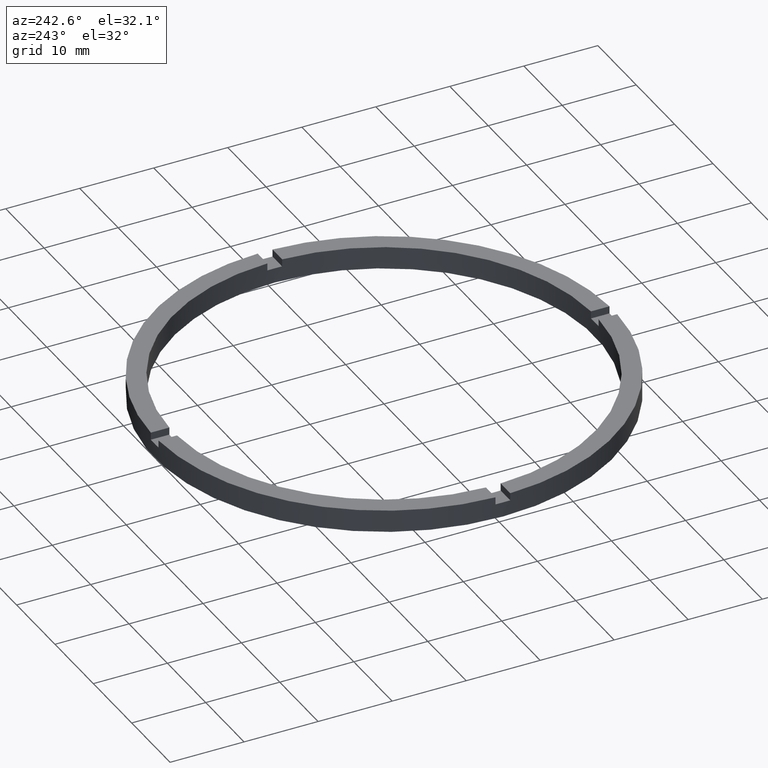
[diagram: clean part render]
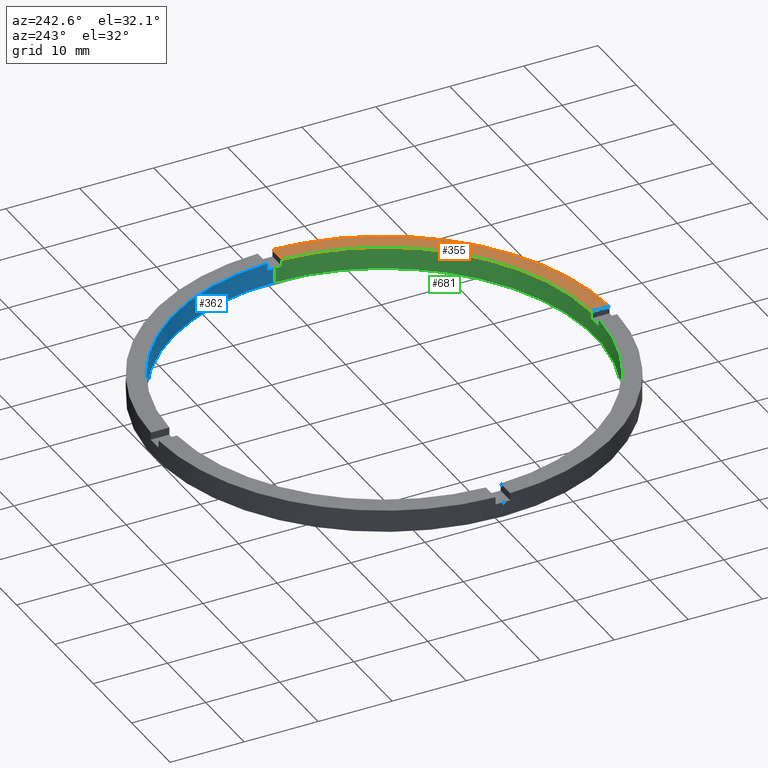
[diagram: same view with three faces highlighted in distinct colors, each labeled with its STEP entity id]
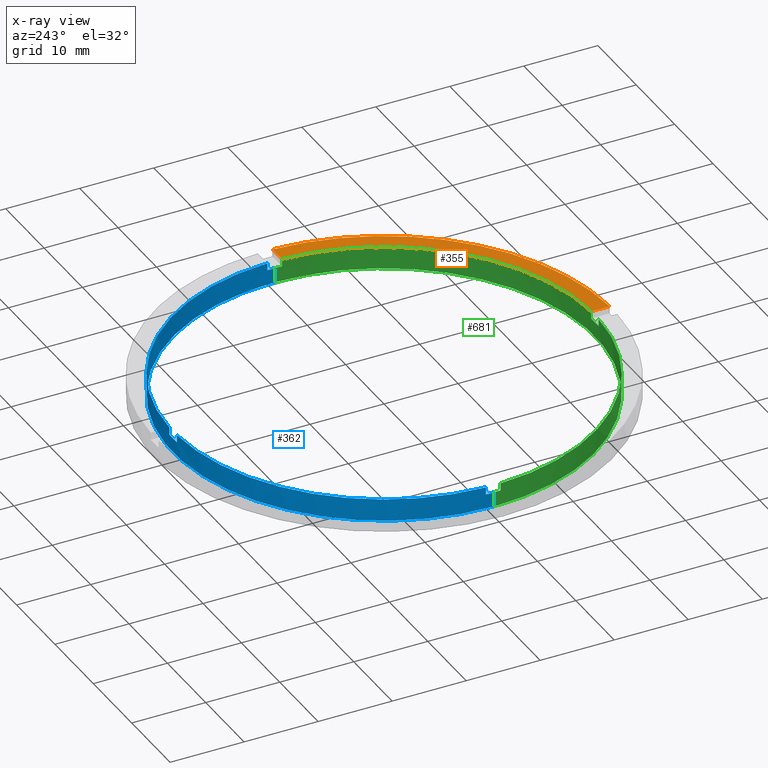
[diagram: x-ray of the same camera — body ghosted, the three highlighted faces saturated]
A machine part, auxiliary view with three faces highlighted in distinct colors.
The next image is the same camera in x-ray (body ghosted, the three faces saturated) — at least one of them is partly hidden behind the body in this view.
Their STEP definitions:

[orange] entity #355 — the highlighted planar face has unit normal (0, 0, 1).
#2 = CIRCLE ( 'NONE', #505, 28.50000000000000000 ) ;
#33 = VERTEX_POINT ( 'NONE', #120 ) ;
#50 = VERTEX_POINT ( 'NONE', #532 ) ;
#62 = PLANE ( 'NONE',  #327 ) ;
#68 = VERTEX_POINT ( 'NONE', #89 ) ;
#78 = EDGE_CURVE ( 'NONE', #50, #68, #540, .T. ) ;
#89 = CARTESIAN_POINT ( 'NONE',  ( 30.98386676965932907, -1.000000000000158762, 3.000000000000000000 ) ) ;
#93 = CARTESIAN_POINT ( 'NONE',  ( 0.000000000000000000, 0.000000000000000000, 3.000000000000000000 ) ) ;
#120 = CARTESIAN_POINT ( 'NONE',  ( 28.48245073725222554, -1.000000000000158762, 3.000000000000000000 ) ) ;
#124 = DIRECTION ( 'NONE',  ( 1.000000000000000000, 6.505213034913025371E-17, 0.000000000000000000 ) ) ;
#140 = DIRECTION ( 'NONE',  ( 0.000000000000000000, 0.000000000000000000, 1.000000000000000000 ) ) ;
#177 = VECTOR ( 'NONE', #124, 1000.000000000000000 ) ;
#182 = CARTESIAN_POINT ( 'NONE',  ( 0.000000000000000000, 0.000000000000000000, 3.000000000000000000 ) ) ;
#188 = DIRECTION ( 'NONE',  ( 0.000000000000000000, 0.000000000000000000, 1.000000000000000000 ) ) ;
#196 = EDGE_CURVE ( 'NONE', #398, #33, #2, .T. ) ;
#199 = ORIENTED_EDGE ( 'NONE', *, *, #78, .T. ) ;
#203 = ORIENTED_EDGE ( 'NONE', *, *, #626, .F. ) ;
#233 = DIRECTION ( 'NONE',  ( 1.000000000000000000, 0.000000000000000000, 0.000000000000000000 ) ) ;
#234 = CARTESIAN_POINT ( 'NONE',  ( 20.99999999999999289, -1.000000000000159428, 3.000000000000000000 ) ) ;
#250 = CARTESIAN_POINT ( 'NONE',  ( 0.9999999999998382405, -28.48245073725223264, 3.000000000000000000 ) ) ;
#255 = EDGE_CURVE ( 'NONE', #50, #398, #509, .T. ) ;
#302 = EDGE_LOOP ( 'NONE', ( #203, #467, #594, #199 ) ) ;
#327 = AXIS2_PLACEMENT_3D ( 'NONE', #182, #188, #652 ) ;
#355 = ADVANCED_FACE ( 'NONE', ( #632 ), #62, .T. ) ;
#374 = CARTESIAN_POINT ( 'NONE',  ( 0.9999999999998373523, -21.00000000000017764, 3.000000000000000000 ) ) ;
#375 = DIRECTION ( 'NONE',  ( 1.000000000000000000, 0.000000000000000000, 0.000000000000000000 ) ) ;
#398 = VERTEX_POINT ( 'NONE', #250 ) ;
#429 = DIRECTION ( 'NONE',  ( 0.000000000000000000, 0.000000000000000000, 1.000000000000000000 ) ) ;
#430 = LINE ( 'NONE', #234, #177 ) ;
#437 = CARTESIAN_POINT ( 'NONE',  ( 0.000000000000000000, 0.000000000000000000, 3.000000000000000000 ) ) ;
#467 = ORIENTED_EDGE ( 'NONE', *, *, #196, .F. ) ;
#497 = VECTOR ( 'NONE', #576, 1000.000000000000000 ) ;
#505 = AXIS2_PLACEMENT_3D ( 'NONE', #437, #429, #375 ) ;
#509 = LINE ( 'NONE', #374, #497 ) ;
#532 = CARTESIAN_POINT ( 'NONE',  ( 0.9999999999998386846, -30.98386676965933972, 3.000000000000000000 ) ) ;
#540 = CIRCLE ( 'NONE', #628, 31.00000000000000000 ) ;
#576 = DIRECTION ( 'NONE',  ( -1.301042606982605074E-16, 1.000000000000000000, -0.000000000000000000 ) ) ;
#594 = ORIENTED_EDGE ( 'NONE', *, *, #255, .F. ) ;
#626 = EDGE_CURVE ( 'NONE', #33, #68, #430, .T. ) ;
#628 = AXIS2_PLACEMENT_3D ( 'NONE', #93, #140, #233 ) ;
#632 = FACE_OUTER_BOUND ( 'NONE', #302, .T. ) ;
#652 = DIRECTION ( 'NONE',  ( 1.000000000000000000, 0.000000000000000000, -0.000000000000000000 ) ) ;

[blue] entity #362 — the highlighted cylindrical surface (partial cylindrical patch) has radius 28.5 mm, axis along (-0, -0, -1).
#1 = LINE ( 'NONE', #191, #290 ) ;
#5 = DIRECTION ( 'NONE',  ( 0.000000000000000000, 0.000000000000000000, 1.000000000000000000 ) ) ;
#9 = CARTESIAN_POINT ( 'NONE',  ( 0.000000000000000000, 0.000000000000000000, 2.000000000000000000 ) ) ;
#11 = EDGE_CURVE ( 'NONE', #58, #325, #530, .T. ) ;
#22 = ORIENTED_EDGE ( 'NONE', *, *, #384, .T. ) ;
#27 = VERTEX_POINT ( 'NONE', #729 ) ;
#28 = ORIENTED_EDGE ( 'NONE', *, *, #85, .F. ) ;
#40 = ORIENTED_EDGE ( 'NONE', *, *, #621, .T. ) ;
#58 = VERTEX_POINT ( 'NONE', #589 ) ;
#60 = CIRCLE ( 'NONE', #557, 28.50000000000000000 ) ;
#66 = VERTEX_POINT ( 'NONE', #625 ) ;
#74 = DIRECTION ( 'NONE',  ( -0.000000000000000000, -0.000000000000000000, -1.000000000000000000 ) ) ;
#79 = AXIS2_PLACEMENT_3D ( 'NONE', #462, #345, #541 ) ;
#82 = DIRECTION ( 'NONE',  ( 1.000000000000000000, 0.000000000000000000, 0.000000000000000000 ) ) ;
#85 = EDGE_CURVE ( 'NONE', #648, #572, #770, .T. ) ;
#92 = DIRECTION ( 'NONE',  ( 0.000000000000000000, 0.000000000000000000, 1.000000000000000000 ) ) ;
#95 = CARTESIAN_POINT ( 'NONE',  ( -1.000000000000024425, 28.48245073725222909, 3.000000000000000000 ) ) ;
#99 = AXIS2_PLACEMENT_3D ( 'NONE', #606, #730, #304 ) ;
#102 = DIRECTION ( 'NONE',  ( -0.000000000000000000, -0.000000000000000000, -1.000000000000000000 ) ) ;
#104 = CARTESIAN_POINT ( 'NONE',  ( 0.000000000000000000, 0.000000000000000000, 3.000000000000000000 ) ) ;
#113 = CIRCLE ( 'NONE', #270, 28.50000000000000000 ) ;
#128 = DIRECTION ( 'NONE',  ( 0.000000000000000000, 0.000000000000000000, 1.000000000000000000 ) ) ;
#134 = ORIENTED_EDGE ( 'NONE', *, *, #752, .F. ) ;
#139 = VECTOR ( 'NONE', #750, 1000.000000000000000 ) ;
#148 = LINE ( 'NONE', #688, #139 ) ;
#155 = CARTESIAN_POINT ( 'NONE',  ( -1.000000000000024425, 28.48245073725222909, 3.000000000000000000 ) ) ;
#162 = CARTESIAN_POINT ( 'NONE',  ( 28.48245073725223264, 0.9999999999998412381, 3.000000000000000000 ) ) ;
#171 = ORIENTED_EDGE ( 'NONE', *, *, #192, .F. ) ;
#191 = CARTESIAN_POINT ( 'NONE',  ( 28.48245073725223264, 0.9999999999998412381, 3.000000000000000000 ) ) ;
#192 = EDGE_CURVE ( 'NONE', #400, #732, #1, .T. ) ;
#211 = CARTESIAN_POINT ( 'NONE',  ( -28.48245073725223264, 0.9999999999999749090, 2.000000000000000000 ) ) ;
#217 = DIRECTION ( 'NONE',  ( 0.000000000000000000, -0.000000000000000000, 1.000000000000000000 ) ) ;
#227 = ORIENTED_EDGE ( 'NONE', *, *, #361, .T. ) ;
#230 = AXIS2_PLACEMENT_3D ( 'NONE', #9, #128, #82 ) ;
#239 = ORIENTED_EDGE ( 'NONE', *, *, #607, .F. ) ;
#246 = ORIENTED_EDGE ( 'NONE', *, *, #655, .F. ) ;
#265 = LINE ( 'NONE', #581, #773 ) ;
#270 = AXIS2_PLACEMENT_3D ( 'NONE', #320, #313, #368 ) ;
#290 = VECTOR ( 'NONE', #74, 1000.000000000000000 ) ;
#293 = CARTESIAN_POINT ( 'NONE',  ( -28.48245073725223264, 0.9999999999999749090, 3.000000000000000000 ) ) ;
#304 = DIRECTION ( 'NONE',  ( -1.000000000000000000, 0.000000000000000000, 0.000000000000000000 ) ) ;
#313 = DIRECTION ( 'NONE',  ( 0.000000000000000000, 0.000000000000000000, 1.000000000000000000 ) ) ;
#315 = VERTEX_POINT ( 'NONE', #612 ) ;
#318 = VERTEX_POINT ( 'NONE', #404 ) ;
#320 = CARTESIAN_POINT ( 'NONE',  ( 0.000000000000000000, 0.000000000000000000, 3.000000000000000000 ) ) ;
#325 = VERTEX_POINT ( 'NONE', #507 ) ;
#329 = VERTEX_POINT ( 'NONE', #498 ) ;
#339 = ORIENTED_EDGE ( 'NONE', *, *, #358, .T. ) ;
#345 = DIRECTION ( 'NONE',  ( 0.000000000000000000, 0.000000000000000000, 1.000000000000000000 ) ) ;
#358 = EDGE_CURVE ( 'NONE', #479, #572, #113, .T. ) ;
#361 = EDGE_CURVE ( 'NONE', #400, #27, #747, .T. ) ;
#362 = ADVANCED_FACE ( 'NONE', ( #511 ), #751, .F. ) ;
#366 = DIRECTION ( 'NONE',  ( 1.000000000000000000, 0.000000000000000000, 0.000000000000000000 ) ) ;
#368 = DIRECTION ( 'NONE',  ( 1.000000000000000000, 0.000000000000000000, 0.000000000000000000 ) ) ;
#384 = EDGE_CURVE ( 'NONE', #648, #318, #60, .T. ) ;
#390 = AXIS2_PLACEMENT_3D ( 'NONE', #104, #435, #427 ) ;
#400 = VERTEX_POINT ( 'NONE', #162 ) ;
#404 = CARTESIAN_POINT ( 'NONE',  ( -28.50000000000000000, 0.000000000000000000, 2.000000000000000000 ) ) ;
#421 = ORIENTED_EDGE ( 'NONE', *, *, #11, .T. ) ;
#427 = DIRECTION ( 'NONE',  ( 1.000000000000000000, 0.000000000000000000, 0.000000000000000000 ) ) ;
#434 = CARTESIAN_POINT ( 'NONE',  ( 0.000000000000000000, 0.000000000000000000, 2.000000000000000000 ) ) ;
#435 = DIRECTION ( 'NONE',  ( 0.000000000000000000, 0.000000000000000000, 1.000000000000000000 ) ) ;
#436 = VECTOR ( 'NONE', #102, 1000.000000000000000 ) ;
#440 = LINE ( 'NONE', #95, #436 ) ;
#444 = EDGE_CURVE ( 'NONE', #58, #27, #265, .T. ) ;
#456 = DIRECTION ( 'NONE',  ( 1.000000000000000000, 0.000000000000000000, 0.000000000000000000 ) ) ;
#462 = CARTESIAN_POINT ( 'NONE',  ( 0.000000000000000000, 0.000000000000000000, 0.000000000000000000 ) ) ;
#473 = EDGE_CURVE ( 'NONE', #318, #329, #777, .T. ) ;
#474 = ORIENTED_EDGE ( 'NONE', *, *, #473, .T. ) ;
#479 = VERTEX_POINT ( 'NONE', #155 ) ;
#484 = AXIS2_PLACEMENT_3D ( 'NONE', #434, #217, #456 ) ;
#498 = CARTESIAN_POINT ( 'NONE',  ( -28.50000000000000000, 0.000000000000000000, 0.000000000000000000 ) ) ;
#507 = CARTESIAN_POINT ( 'NONE',  ( -1.000000000000024425, 28.48245073725222909, 2.000000000000000000 ) ) ;
#511 = FACE_OUTER_BOUND ( 'NONE', #598, .T. ) ;
#517 = DIRECTION ( 'NONE',  ( -0.000000000000000000, -0.000000000000000000, -1.000000000000000000 ) ) ;
#530 = CIRCLE ( 'NONE', #484, 28.50000000000000000 ) ;
#533 = VECTOR ( 'NONE', #683, 1000.000000000000000 ) ;
#541 = DIRECTION ( 'NONE',  ( 1.000000000000000000, 0.000000000000000000, 0.000000000000000000 ) ) ;
#542 = VECTOR ( 'NONE', #517, 1000.000000000000000 ) ;
#557 = AXIS2_PLACEMENT_3D ( 'NONE', #561, #5, #366 ) ;
#561 = CARTESIAN_POINT ( 'NONE',  ( 0.000000000000000000, 0.000000000000000000, 2.000000000000000000 ) ) ;
#572 = VERTEX_POINT ( 'NONE', #733 ) ;
#581 = CARTESIAN_POINT ( 'NONE',  ( 0.9999999999999754641, 28.48245073725223264, 3.000000000000000000 ) ) ;
#589 = CARTESIAN_POINT ( 'NONE',  ( 0.9999999999999754641, 28.48245073725223264, 2.000000000000000000 ) ) ;
#598 = EDGE_LOOP ( 'NONE', ( #246, #40, #171, #227, #701, #421, #134, #339, #28, #22, #474, #239 ) ) ;
#606 = CARTESIAN_POINT ( 'NONE',  ( 0.000000000000000000, 0.000000000000000000, 3.000000000000000000 ) ) ;
#607 = EDGE_CURVE ( 'NONE', #66, #329, #694, .T. ) ;
#612 = CARTESIAN_POINT ( 'NONE',  ( 28.50000000000000000, 3.490243377569956456E-15, 2.000000000000000000 ) ) ;
#621 = EDGE_CURVE ( 'NONE', #315, #732, #673, .T. ) ;
#625 = CARTESIAN_POINT ( 'NONE',  ( 28.50000000000000000, 3.490243377569956456E-15, 0.000000000000000000 ) ) ;
#627 = CARTESIAN_POINT ( 'NONE',  ( -28.50000000000000000, 0.000000000000000000, 3.000000000000000000 ) ) ;
#648 = VERTEX_POINT ( 'NONE', #211 ) ;
#655 = EDGE_CURVE ( 'NONE', #315, #66, #148, .T. ) ;
#673 = CIRCLE ( 'NONE', #230, 28.50000000000000000 ) ;
#683 = DIRECTION ( 'NONE',  ( 0.000000000000000000, 0.000000000000000000, 1.000000000000000000 ) ) ;
#688 = CARTESIAN_POINT ( 'NONE',  ( 28.50000000000000000, 3.490243377569956456E-15, 3.000000000000000000 ) ) ;
#694 = CIRCLE ( 'NONE', #79, 28.50000000000000000 ) ;
#701 = ORIENTED_EDGE ( 'NONE', *, *, #444, .F. ) ;
#729 = CARTESIAN_POINT ( 'NONE',  ( 0.9999999999999754641, 28.48245073725223264, 3.000000000000000000 ) ) ;
#730 = DIRECTION ( 'NONE',  ( -0.000000000000000000, -0.000000000000000000, -1.000000000000000000 ) ) ;
#732 = VERTEX_POINT ( 'NONE', #758 ) ;
#733 = CARTESIAN_POINT ( 'NONE',  ( -28.48245073725223264, 0.9999999999999749090, 3.000000000000000000 ) ) ;
#747 = CIRCLE ( 'NONE', #390, 28.50000000000000000 ) ;
#750 = DIRECTION ( 'NONE',  ( -0.000000000000000000, -0.000000000000000000, -1.000000000000000000 ) ) ;
#751 = CYLINDRICAL_SURFACE ( 'NONE', #99, 28.50000000000000000 ) ;
#752 = EDGE_CURVE ( 'NONE', #479, #325, #440, .T. ) ;
#758 = CARTESIAN_POINT ( 'NONE',  ( 28.48245073725223264, 0.9999999999998412381, 2.000000000000000000 ) ) ;
#770 = LINE ( 'NONE', #293, #533 ) ;
#773 = VECTOR ( 'NONE', #92, 1000.000000000000000 ) ;
#777 = LINE ( 'NONE', #627, #542 ) ;

[green] entity #681 — the highlighted cylindrical surface (partial cylindrical patch) has radius 28.5 mm, axis along (-0, -0, -1).
#2 = CIRCLE ( 'NONE', #505, 28.50000000000000000 ) ;
#8 = LINE ( 'NONE', #726, #284 ) ;
#21 = AXIS2_PLACEMENT_3D ( 'NONE', #546, #631, #159 ) ;
#31 = EDGE_LOOP ( 'NONE', ( #408, #592, #417, #317, #728, #225, #138, #393, #727, #721, #118, #722 ) ) ;
#33 = VERTEX_POINT ( 'NONE', #120 ) ;
#53 = DIRECTION ( 'NONE',  ( 0.000000000000000000, 0.000000000000000000, 1.000000000000000000 ) ) ;
#65 = LINE ( 'NONE', #328, #586 ) ;
#66 = VERTEX_POINT ( 'NONE', #625 ) ;
#77 = DIRECTION ( 'NONE',  ( 0.000000000000000000, 0.000000000000000000, 1.000000000000000000 ) ) ;
#90 = CARTESIAN_POINT ( 'NONE',  ( -1.000000000000161871, -28.48245073725222554, 3.000000000000000000 ) ) ;
#101 = CARTESIAN_POINT ( 'NONE',  ( -28.48245073725222909, -1.000000000000025091, 3.000000000000000000 ) ) ;
#118 = ORIENTED_EDGE ( 'NONE', *, *, #196, .T. ) ;
#119 = LINE ( 'NONE', #272, #638 ) ;
#120 = CARTESIAN_POINT ( 'NONE',  ( 28.48245073725222554, -1.000000000000158762, 3.000000000000000000 ) ) ;
#125 = EDGE_CURVE ( 'NONE', #397, #654, #288, .T. ) ;
#133 = DIRECTION ( 'NONE',  ( 0.000000000000000000, 0.000000000000000000, 1.000000000000000000 ) ) ;
#138 = ORIENTED_EDGE ( 'NONE', *, *, #125, .T. ) ;
#139 = VECTOR ( 'NONE', #750, 1000.000000000000000 ) ;
#144 = EDGE_CURVE ( 'NONE', #329, #66, #783, .T. ) ;
#148 = LINE ( 'NONE', #688, #139 ) ;
#159 = DIRECTION ( 'NONE',  ( -1.000000000000000000, 0.000000000000000000, 0.000000000000000000 ) ) ;
#168 = CYLINDRICAL_SURFACE ( 'NONE', #21, 28.50000000000000000 ) ;
#169 = EDGE_CURVE ( 'NONE', #583, #654, #8, .T. ) ;
#175 = AXIS2_PLACEMENT_3D ( 'NONE', #276, #219, #380 ) ;
#196 = EDGE_CURVE ( 'NONE', #398, #33, #2, .T. ) ;
#200 = DIRECTION ( 'NONE',  ( 1.000000000000000000, 0.000000000000000000, 0.000000000000000000 ) ) ;
#219 = DIRECTION ( 'NONE',  ( 0.000000000000000000, 0.000000000000000000, 1.000000000000000000 ) ) ;
#221 = CARTESIAN_POINT ( 'NONE',  ( -1.000000000000161871, -28.48245073725222554, 2.000000000000000000 ) ) ;
#225 = ORIENTED_EDGE ( 'NONE', *, *, #294, .F. ) ;
#229 = DIRECTION ( 'NONE',  ( 0.000000000000000000, 0.000000000000000000, 1.000000000000000000 ) ) ;
#250 = CARTESIAN_POINT ( 'NONE',  ( 0.9999999999998382405, -28.48245073725223264, 3.000000000000000000 ) ) ;
#264 = AXIS2_PLACEMENT_3D ( 'NONE', #340, #292, #349 ) ;
#272 = CARTESIAN_POINT ( 'NONE',  ( -28.48245073725222909, -1.000000000000025091, 3.000000000000000000 ) ) ;
#276 = CARTESIAN_POINT ( 'NONE',  ( 0.000000000000000000, 0.000000000000000000, 3.000000000000000000 ) ) ;
#284 = VECTOR ( 'NONE', #77, 1000.000000000000000 ) ;
#288 = CIRCLE ( 'NONE', #175, 28.50000000000000000 ) ;
#292 = DIRECTION ( 'NONE',  ( 0.000000000000000000, 0.000000000000000000, 1.000000000000000000 ) ) ;
#294 = EDGE_CURVE ( 'NONE', #397, #646, #119, .T. ) ;
#315 = VERTEX_POINT ( 'NONE', #612 ) ;
#317 = ORIENTED_EDGE ( 'NONE', *, *, #473, .F. ) ;
#318 = VERTEX_POINT ( 'NONE', #404 ) ;
#328 = CARTESIAN_POINT ( 'NONE',  ( 0.9999999999998382405, -28.48245073725223264, 3.000000000000000000 ) ) ;
#329 = VERTEX_POINT ( 'NONE', #498 ) ;
#340 = CARTESIAN_POINT ( 'NONE',  ( 0.000000000000000000, 0.000000000000000000, 2.000000000000000000 ) ) ;
#349 = DIRECTION ( 'NONE',  ( 1.000000000000000000, 0.000000000000000000, 0.000000000000000000 ) ) ;
#369 = EDGE_CURVE ( 'NONE', #583, #590, #754, .T. ) ;
#373 = EDGE_CURVE ( 'NONE', #398, #590, #65, .T. ) ;
#375 = DIRECTION ( 'NONE',  ( 1.000000000000000000, 0.000000000000000000, 0.000000000000000000 ) ) ;
#379 = AXIS2_PLACEMENT_3D ( 'NONE', #609, #133, #514 ) ;
#380 = DIRECTION ( 'NONE',  ( 1.000000000000000000, 0.000000000000000000, 0.000000000000000000 ) ) ;
#382 = CARTESIAN_POINT ( 'NONE',  ( 0.000000000000000000, 0.000000000000000000, 2.000000000000000000 ) ) ;
#386 = AXIS2_PLACEMENT_3D ( 'NONE', #382, #229, #200 ) ;
#393 = ORIENTED_EDGE ( 'NONE', *, *, #169, .F. ) ;
#397 = VERTEX_POINT ( 'NONE', #101 ) ;
#398 = VERTEX_POINT ( 'NONE', #250 ) ;
#404 = CARTESIAN_POINT ( 'NONE',  ( -28.50000000000000000, 0.000000000000000000, 2.000000000000000000 ) ) ;
#408 = ORIENTED_EDGE ( 'NONE', *, *, #520, .T. ) ;
#415 = LINE ( 'NONE', #697, #424 ) ;
#417 = ORIENTED_EDGE ( 'NONE', *, *, #144, .F. ) ;
#419 = DIRECTION ( 'NONE',  ( -0.000000000000000000, 0.000000000000000000, 1.000000000000000000 ) ) ;
#424 = VECTOR ( 'NONE', #53, 1000.000000000000000 ) ;
#428 = FACE_OUTER_BOUND ( 'NONE', #31, .T. ) ;
#429 = DIRECTION ( 'NONE',  ( 0.000000000000000000, 0.000000000000000000, 1.000000000000000000 ) ) ;
#437 = CARTESIAN_POINT ( 'NONE',  ( 0.000000000000000000, 0.000000000000000000, 3.000000000000000000 ) ) ;
#469 = CARTESIAN_POINT ( 'NONE',  ( 0.9999999999998382405, -28.48245073725223264, 2.000000000000000000 ) ) ;
#473 = EDGE_CURVE ( 'NONE', #318, #329, #777, .T. ) ;
#493 = CARTESIAN_POINT ( 'NONE',  ( 0.000000000000000000, 0.000000000000000000, 2.000000000000000000 ) ) ;
#498 = CARTESIAN_POINT ( 'NONE',  ( -28.50000000000000000, 0.000000000000000000, 0.000000000000000000 ) ) ;
#503 = DIRECTION ( 'NONE',  ( -0.000000000000000000, -0.000000000000000000, -1.000000000000000000 ) ) ;
#505 = AXIS2_PLACEMENT_3D ( 'NONE', #437, #429, #375 ) ;
#512 = DIRECTION ( 'NONE',  ( -0.000000000000000000, -0.000000000000000000, -1.000000000000000000 ) ) ;
#514 = DIRECTION ( 'NONE',  ( 1.000000000000000000, 0.000000000000000000, 0.000000000000000000 ) ) ;
#515 = CARTESIAN_POINT ( 'NONE',  ( -28.48245073725222909, -1.000000000000025091, 2.000000000000000000 ) ) ;
#517 = DIRECTION ( 'NONE',  ( -0.000000000000000000, -0.000000000000000000, -1.000000000000000000 ) ) ;
#520 = EDGE_CURVE ( 'NONE', #644, #315, #692, .T. ) ;
#534 = CARTESIAN_POINT ( 'NONE',  ( 28.48245073725222554, -1.000000000000158762, 2.000000000000000000 ) ) ;
#542 = VECTOR ( 'NONE', #517, 1000.000000000000000 ) ;
#546 = CARTESIAN_POINT ( 'NONE',  ( 0.000000000000000000, 0.000000000000000000, 3.000000000000000000 ) ) ;
#578 = AXIS2_PLACEMENT_3D ( 'NONE', #493, #419, #604 ) ;
#583 = VERTEX_POINT ( 'NONE', #221 ) ;
#586 = VECTOR ( 'NONE', #503, 1000.000000000000000 ) ;
#590 = VERTEX_POINT ( 'NONE', #469 ) ;
#592 = ORIENTED_EDGE ( 'NONE', *, *, #655, .T. ) ;
#602 = EDGE_CURVE ( 'NONE', #318, #646, #669, .T. ) ;
#604 = DIRECTION ( 'NONE',  ( 1.000000000000000000, 0.000000000000000000, 0.000000000000000000 ) ) ;
#609 = CARTESIAN_POINT ( 'NONE',  ( 0.000000000000000000, 0.000000000000000000, 0.000000000000000000 ) ) ;
#612 = CARTESIAN_POINT ( 'NONE',  ( 28.50000000000000000, 3.490243377569956456E-15, 2.000000000000000000 ) ) ;
#625 = CARTESIAN_POINT ( 'NONE',  ( 28.50000000000000000, 3.490243377569956456E-15, 0.000000000000000000 ) ) ;
#627 = CARTESIAN_POINT ( 'NONE',  ( -28.50000000000000000, 0.000000000000000000, 3.000000000000000000 ) ) ;
#631 = DIRECTION ( 'NONE',  ( -0.000000000000000000, -0.000000000000000000, -1.000000000000000000 ) ) ;
#638 = VECTOR ( 'NONE', #512, 1000.000000000000000 ) ;
#644 = VERTEX_POINT ( 'NONE', #534 ) ;
#646 = VERTEX_POINT ( 'NONE', #515 ) ;
#654 = VERTEX_POINT ( 'NONE', #90 ) ;
#655 = EDGE_CURVE ( 'NONE', #315, #66, #148, .T. ) ;
#669 = CIRCLE ( 'NONE', #386, 28.50000000000000000 ) ;
#681 = ADVANCED_FACE ( 'NONE', ( #428 ), #168, .F. ) ;
#688 = CARTESIAN_POINT ( 'NONE',  ( 28.50000000000000000, 3.490243377569956456E-15, 3.000000000000000000 ) ) ;
#692 = CIRCLE ( 'NONE', #264, 28.50000000000000000 ) ;
#697 = CARTESIAN_POINT ( 'NONE',  ( 28.48245073725222554, -1.000000000000158762, 3.000000000000000000 ) ) ;
#721 = ORIENTED_EDGE ( 'NONE', *, *, #373, .F. ) ;
#722 = ORIENTED_EDGE ( 'NONE', *, *, #724, .F. ) ;
#724 = EDGE_CURVE ( 'NONE', #644, #33, #415, .T. ) ;
#726 = CARTESIAN_POINT ( 'NONE',  ( -1.000000000000161871, -28.48245073725222554, 3.000000000000000000 ) ) ;
#727 = ORIENTED_EDGE ( 'NONE', *, *, #369, .T. ) ;
#728 = ORIENTED_EDGE ( 'NONE', *, *, #602, .T. ) ;
#750 = DIRECTION ( 'NONE',  ( -0.000000000000000000, -0.000000000000000000, -1.000000000000000000 ) ) ;
#754 = CIRCLE ( 'NONE', #578, 28.50000000000000000 ) ;
#777 = LINE ( 'NONE', #627, #542 ) ;
#783 = CIRCLE ( 'NONE', #379, 28.50000000000000000 ) ;